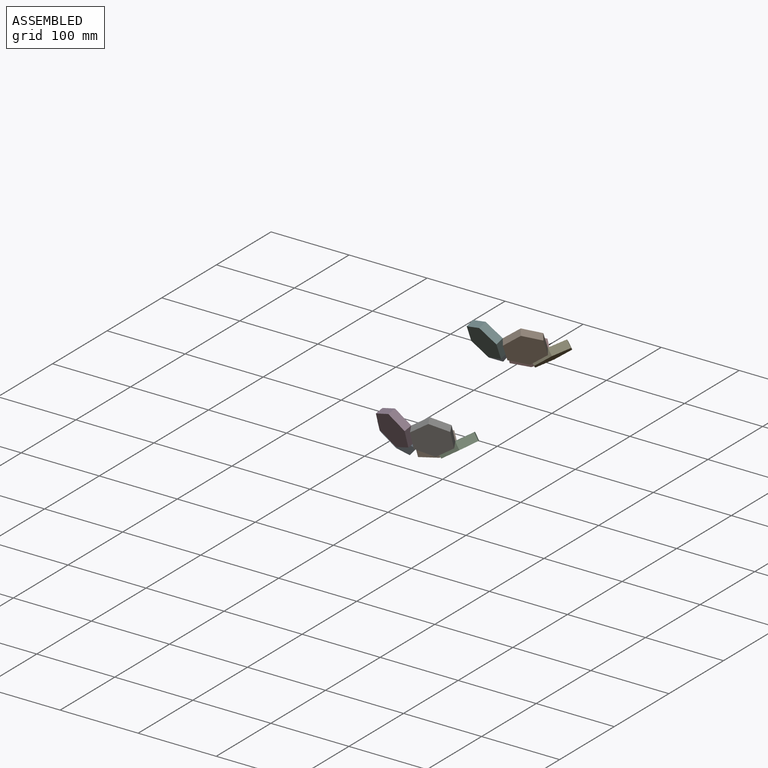
[diagram: assembled view]
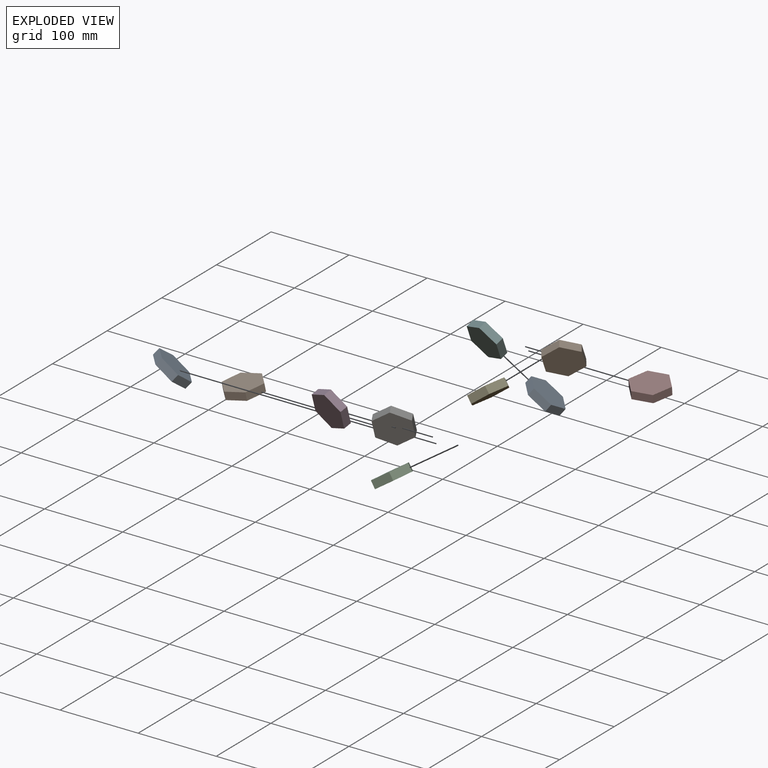
[diagram: exploded view]
GUIDED TOUR — MATED ASSEMBLY (Onshape document 4a54d58a256c18715824fa3d, AutoMate assembly 4a54d58a256c18715824fa3d_50239697ed37a9b57a708772_ed804ed83175c85d9fe1a033_default)

This assembly has 10 components, labeled P0..P9 below (a component is one placed occurrence of a part; the same part can appear more than once), held together by 14 mates. A mate is a constraint between two components; its type names the relative motion it leaves free:
  CYLINDRICAL — leaves both rotation about and translation along the listed axis free,
  REVOLUTE — leaves rotation about the listed axis free (a hinge).
Axis/direction vectors are unit vectors and 'through' points are millimeter coordinates, both in the assembly's world frame.

MATES
  1. REVOLUTE "Revolute 2": P0 <-> P5, axis (-0.797, -0.119, 0.593) through (-139.00, -50.22, 98.42) mm
  2. REVOLUTE "Revolute 3": P6 <-> P3, axis (-0.070, 0.374, -0.925) through (-273.56, 8.32, -65.49) mm
  3. REVOLUTE "Revolute 1": P7 <-> P0, axis (-0.659, 0.745, 0.107) through (-133.83, -17.85, 80.20) mm
  4. CYLINDRICAL "Cylindrical 5": P7 <-> P4, axis (-0.322, -0.941, -0.107) through (-97.06, -10.50, 80.21) mm
  5. REVOLUTE "Revolute 3": P1 <-> P5, axis (-0.095, 0.470, -0.878) through (-105.55, -63.39, 109.11) mm
  6. REVOLUTE "Revolute 4": P4 <-> P1, axis (-0.783, -0.197, -0.590) through (-79.76, -38.40, 98.32) mm
  7. REVOLUTE "Revolute 1": P9 <-> P8, axis (-0.654, 0.756, -0.005) through (-300.71, 50.69, -100.34) mm
  8. REVOLUTE "Revolute 2": P8 <-> P3, axis (-0.809, -0.035, 0.587) through (-306.49, 21.02, -78.15) mm
  9. REVOLUTE "Revolute 5": P9 <-> P2, axis (-0.317, -0.936, -0.152) through (-264.29, 57.44, -94.48) mm
  10. REVOLUTE "Revolute 5": P7 <-> P4, axis (-0.322, -0.941, -0.107) through (-97.06, -10.50, 80.21) mm
  11. REVOLUTE "Revolute 6": P9 <-> P8, axis (-0.654, 0.756, -0.005) through (-300.71, 50.69, -100.34) mm
  12. REVOLUTE "Revolute 6": P7 <-> P0, axis (-0.659, 0.745, 0.107) through (-133.83, -17.85, 80.20) mm
  13. REVOLUTE "Revolute 4": P2 <-> P6, axis (-0.820, -0.168, -0.547) through (-245.41, 28.63, -79.67) mm
  14. CYLINDRICAL "Cylindrical 5": P9 <-> P2, axis (-0.317, -0.936, -0.152) through (-264.29, 57.44, -94.48) mm

ASSEMBLY ORDER
  1. P5 — the base component [order verified]
  2. P0 [order verified]
  3. P1 [order verified]
  4. P4 [order verified]
  5. P7 [order verified]
  6. P6 [order verified]
  7. P2 [order verified]
  8. P3 [order verified]
  9. P8 [order verified]
  10. P9 [order verified]
Order-tag legend:
  [order verified] — this step's position reverses a verified removal order: the component was checked to insert without passing through the ones already placed.

Of the 10 components, 10 carry the full construction recipe — the FeatureScript program that regenerates the part's solid from scratch; the rest are supplied as boundary geometry only.
Each toured component is shown spotlighted twice — in the assembled view, then in the exploded view, where a leader line traces a displaced component back to its assembled socket (saturated green if recipe-attached, orange if geometry-only; every other component desaturated gray) — followed by its recipe or geometry summary and the mates that hold it.
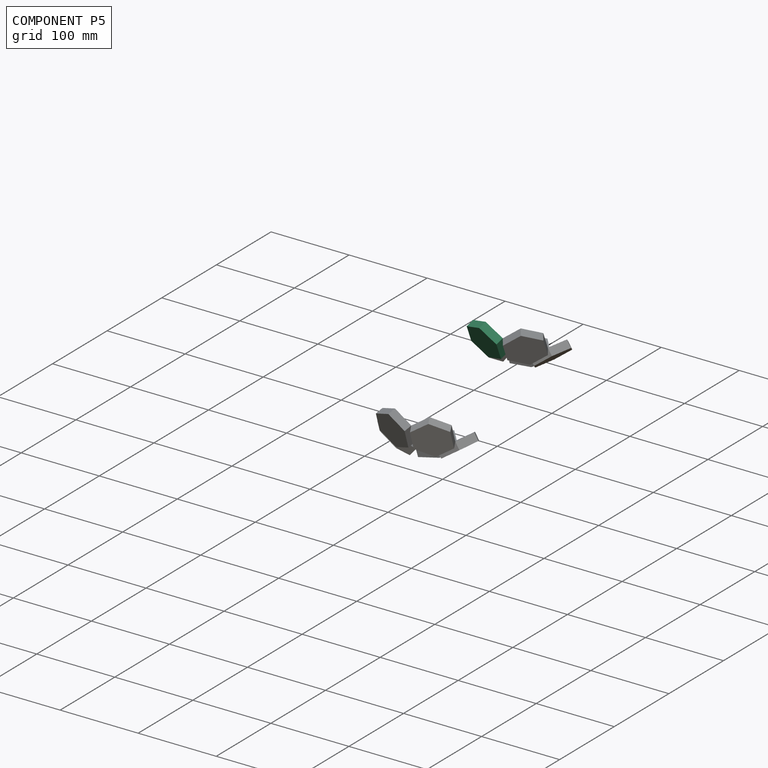
[diagram: component P5 — assembled]
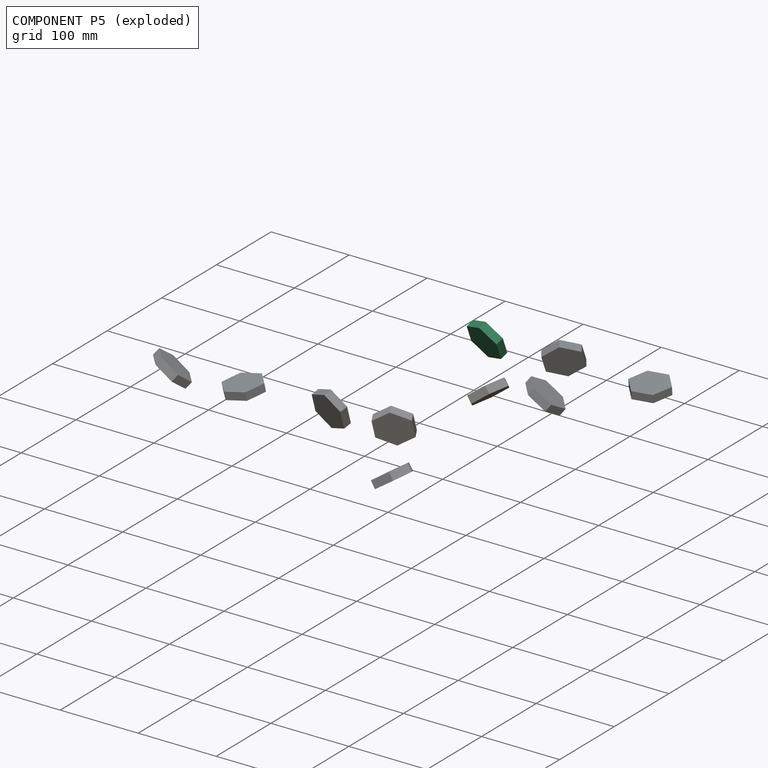
[diagram: component P5 — exploded]
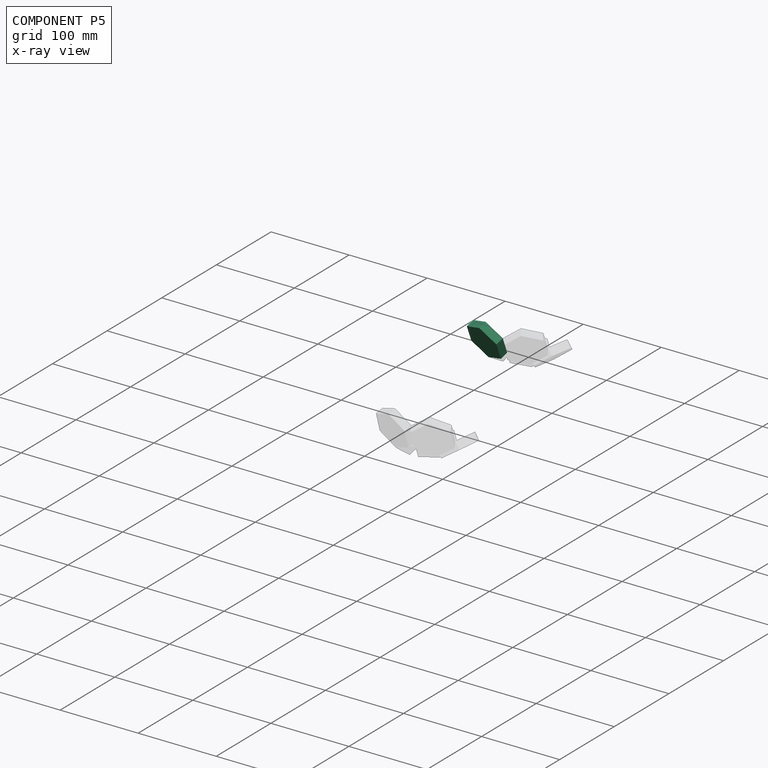
[diagram: component P5 — x-ray view]
COMPONENT P5 — same part as P0 (CADFS 00908609); its construction recipe is shown at P0.
Held by: REVOLUTE mate "Revolute 2" to P0; REVOLUTE mate "Revolute 3" to P1.
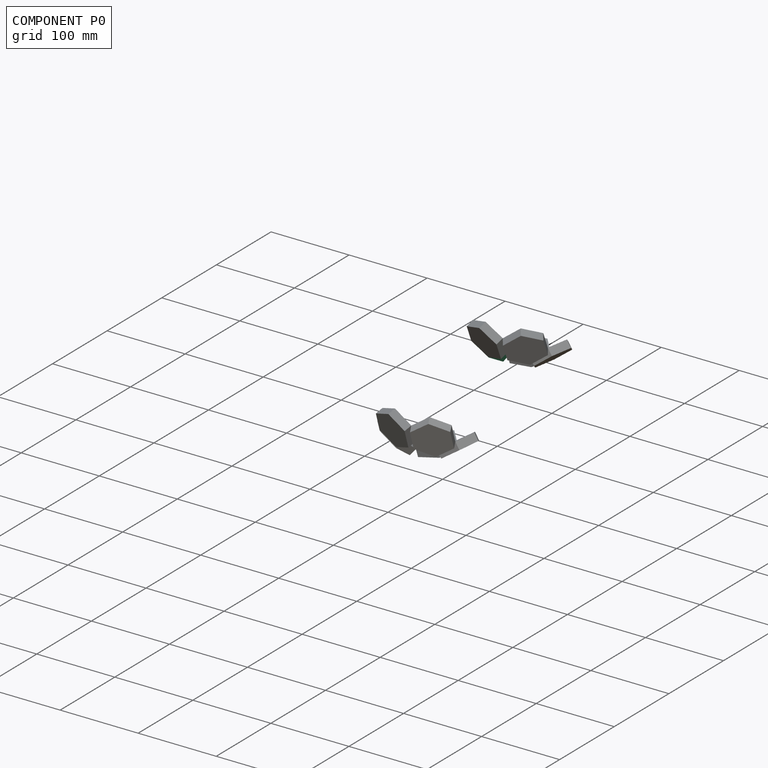
[diagram: component P0 — assembled]
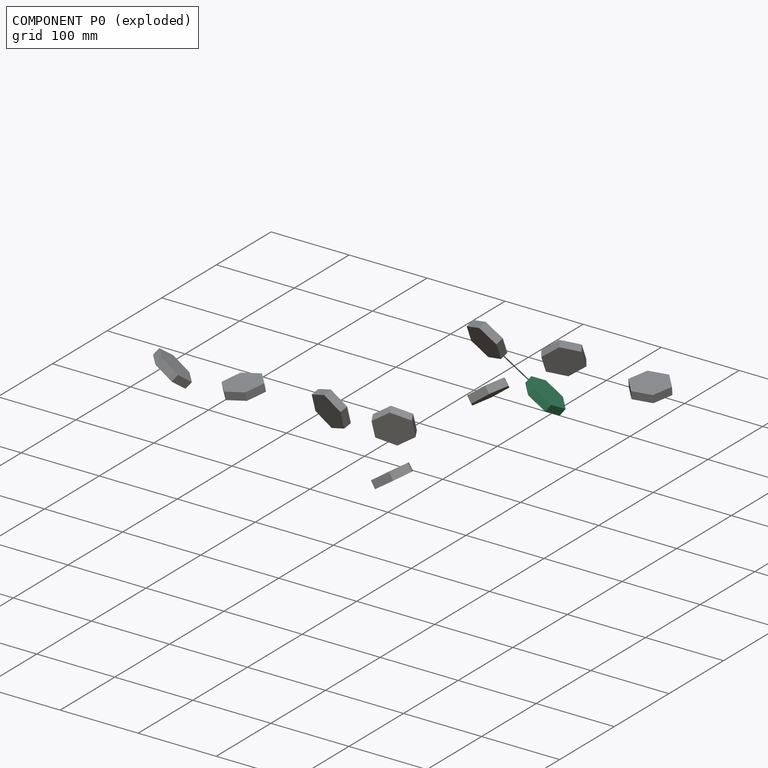
[diagram: component P0 — exploded]
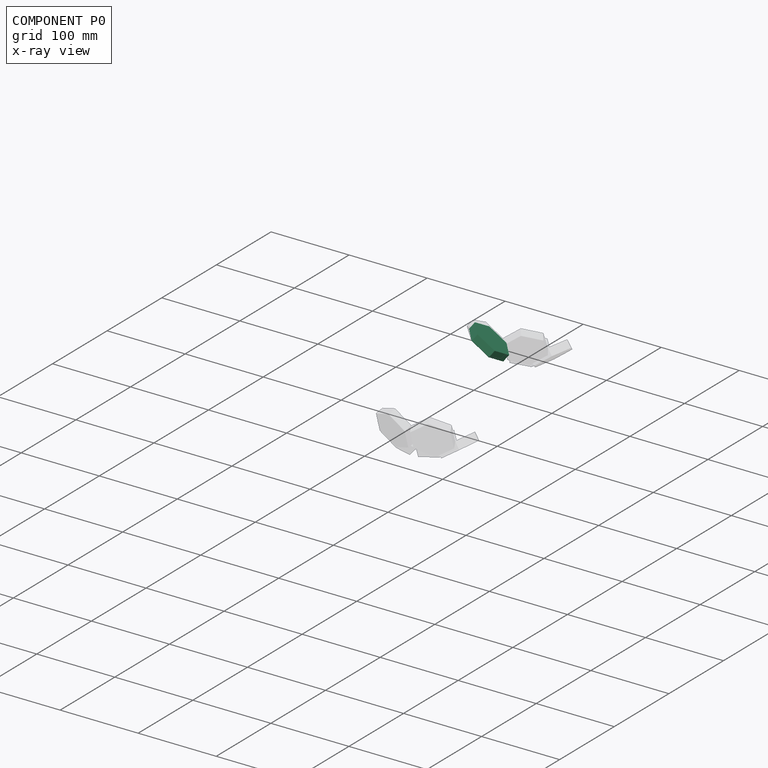
[diagram: component P0 — x-ray view]
COMPONENT P0 — recipe-attached (CADFS 00908609, mesh-verified: the recipe's output STEP matches this component's geometry to below the mesh-comparison resolution (tessellation chordal tolerance ~0.101 mm)).
Held by: REVOLUTE mate "Revolute 2" to P5; REVOLUTE mate "Revolute 1" to P7; REVOLUTE mate "Revolute 6" to P7.
Construction recipe (FeatureScript — the CAD program that rebuilds this solid; sketch coordinates are in the units given by the * unit suffixes, e.g. mm):

FeatureScript 1511;
import(path : "onshape/std/geometry.fs", version : "1511.0");
import(path : "onshape/std/common.fs", version : "1511.0");
const mm = millimeter;
const VERTEX = EntityType.VERTEX;
const EDGE = EntityType.EDGE;
const FACE = EntityType.FACE;
const BODY = EntityType.BODY;
function v(x, y){return vector(x, y);}
function OD(order){return orderDisambiguation(order);}
function OSD(set){return originalSetDisambiguation(set);}
function TD(topology){return topologyDisambiguation(topology);}
function TDD(query){return trueDependencyDisambiguation(query);}
function sQuery(a, b, c) {return sketchEntityQuery(a, b, c);}

annotation { "Feature Type Name" : "Feature", "Feature Type Description" : "" }
export const myFeature = defineFeature(function(context is Context, id is Id, definition is map)
    precondition{}
    {
        {
            var Q0;
            Q0=qCreatedBy(makeId("Top.planeOp"),FACE);
            var sketch = newSketch(context, id + "F0", { "sketchPlane" : qUnion([Q0])});
            skCircle(sketch, "E0.cCircle", {"center": v(0, 0) * mm, "radius": 21.65 * mm, "construction": true});
            skLineSegment(sketch, "E0.0", {"start": v(12.18, 21.83) * mm, "end": v(25, 0.37) * mm});
            skLineSegment(sketch, "E0.1", {"start": v(25, 0.37) * mm, "end": v(12.82, -21.46) * mm});
            skLineSegment(sketch, "E0.2", {"start": v(12.82, -21.46) * mm, "end": v(-12.18, -21.83) * mm});
            skLineSegment(sketch, "E0.3", {"start": v(-12.18, -21.83) * mm, "end": v(-25, -0.37) * mm});
            skLineSegment(sketch, "E0.4", {"start": v(-25, -0.37) * mm, "end": v(-12.82, 21.46) * mm});
            skLineSegment(sketch, "E0.5", {"start": v(-12.82, 21.46) * mm, "end": v(12.18, 21.83) * mm});
            skPoint(sketch, "E0.0.midPoint", {"position": v(18.59, 11.1) * mm});
            skSolve(sketch);
        }
        {
            var Q0;
            Q0=makeQuery(id+"F0.imprint","IMPRINT",FACE,{"disambiguationData":[TD([[makeQuery(id+"F0.imprint","IMPRINT",EDGE,{"derivedFrom":sQuery(id+"F0.wireOp",EDGE,"E0.0")}),-1.0]])]});
            var Q1;
            Q1=makeQuery(id+"F0.imprint","IMPRINT",FACE,{"disambiguationData":[TD([[makeQuery(id+"F0.imprint","IMPRINT",EDGE,{"derivedFrom":sQuery(id+"F0.wireOp",EDGE,"E0.0")}),-1.0]])]});
            extrude(context, id + "F1", {"entities" : qUnion([Q0, Q1]), "oppositeDirection" : true, "depth" : 10 * mm, "offsetDistance" : 25 * mm});
        }
    });
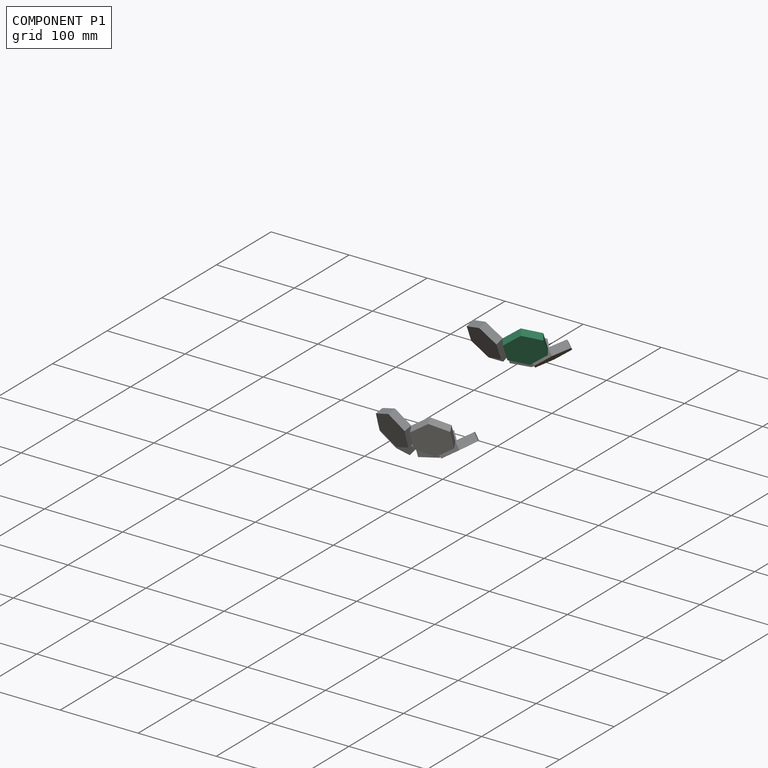
[diagram: component P1 — assembled]
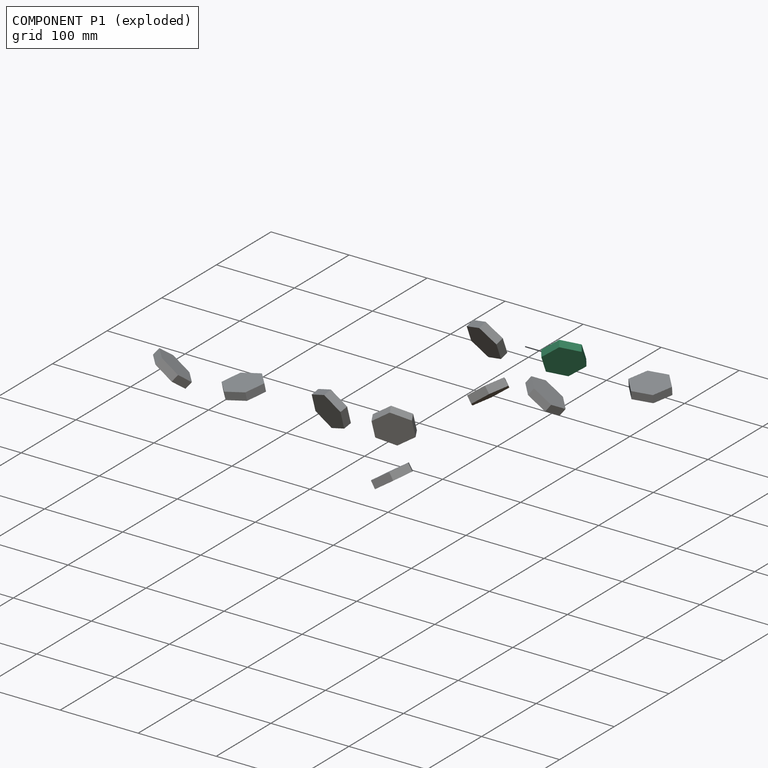
[diagram: component P1 — exploded]
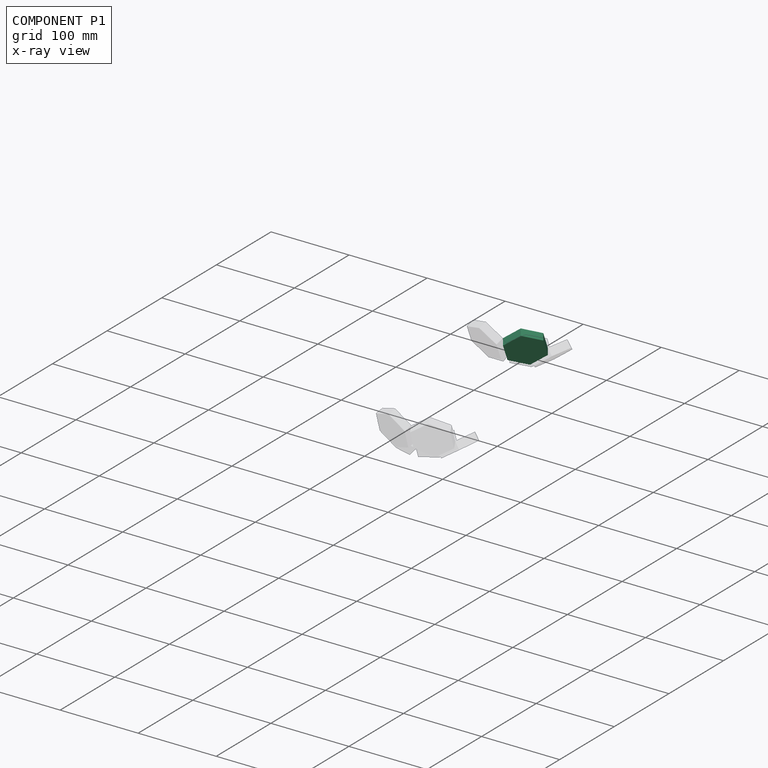
[diagram: component P1 — x-ray view]
COMPONENT P1 — same part as P0 (CADFS 00908609); its construction recipe is shown at P0.
Held by: REVOLUTE mate "Revolute 3" to P5; REVOLUTE mate "Revolute 4" to P4.
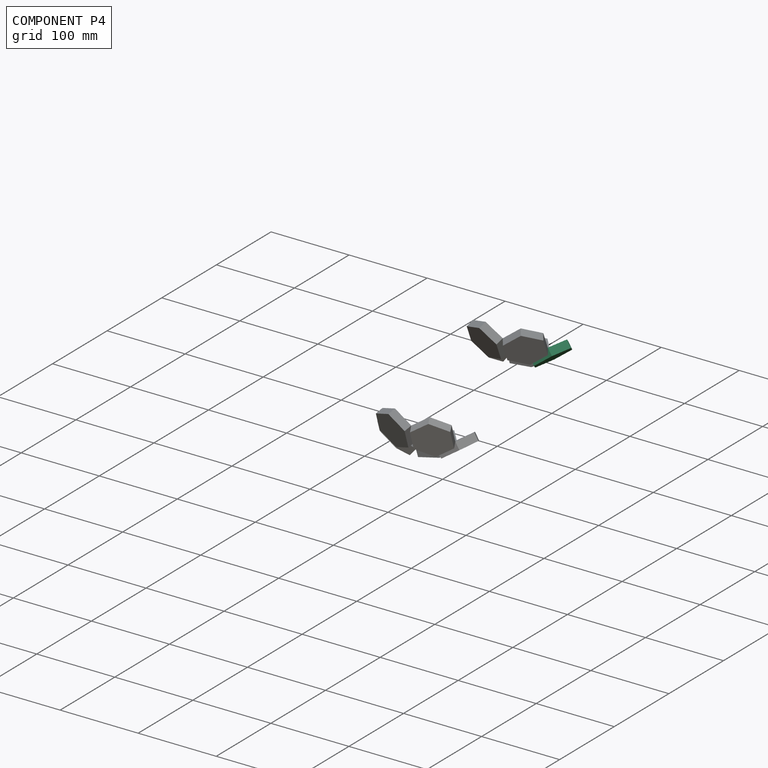
[diagram: component P4 — assembled]
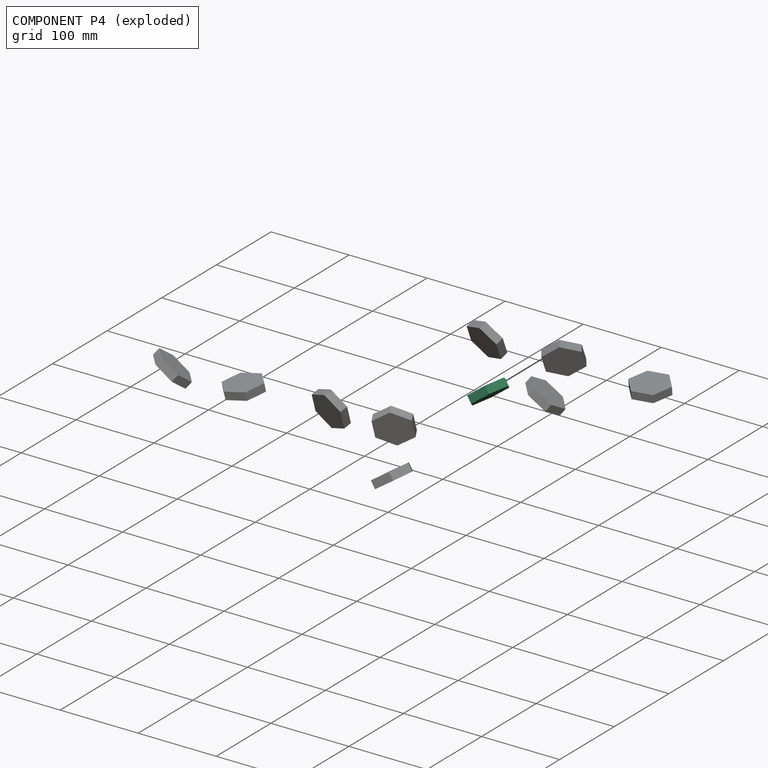
[diagram: component P4 — exploded]
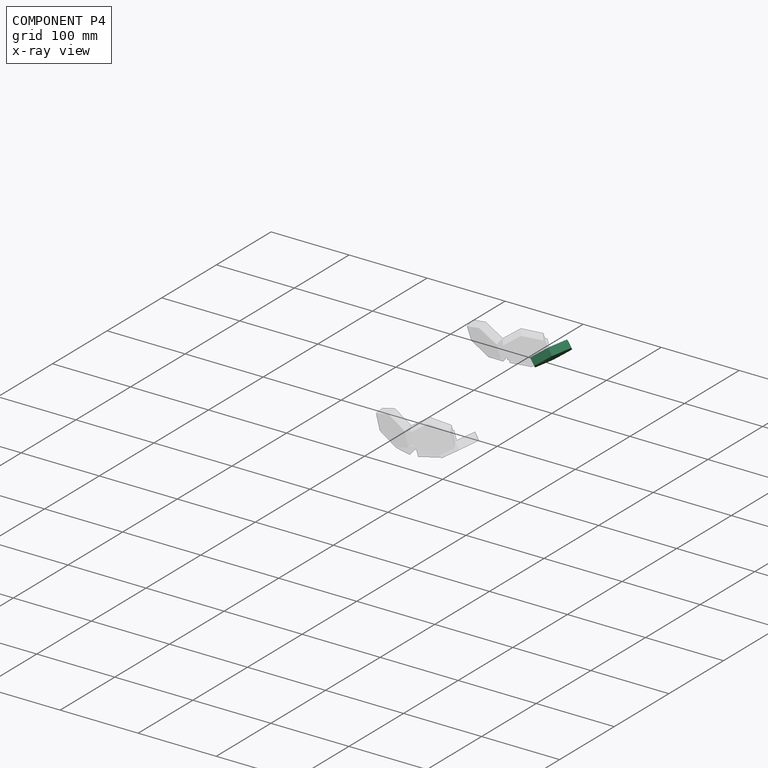
[diagram: component P4 — x-ray view]
COMPONENT P4 — same part as P0 (CADFS 00908609); its construction recipe is shown at P0.
Held by: CYLINDRICAL mate "Cylindrical 5" to P7; REVOLUTE mate "Revolute 4" to P1; REVOLUTE mate "Revolute 5" to P7.
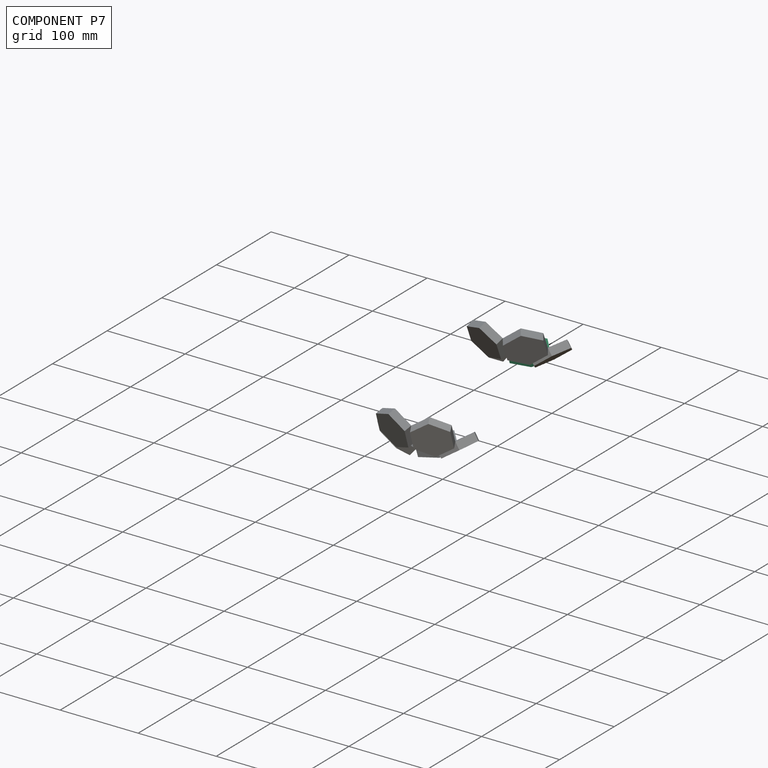
[diagram: component P7 — assembled]
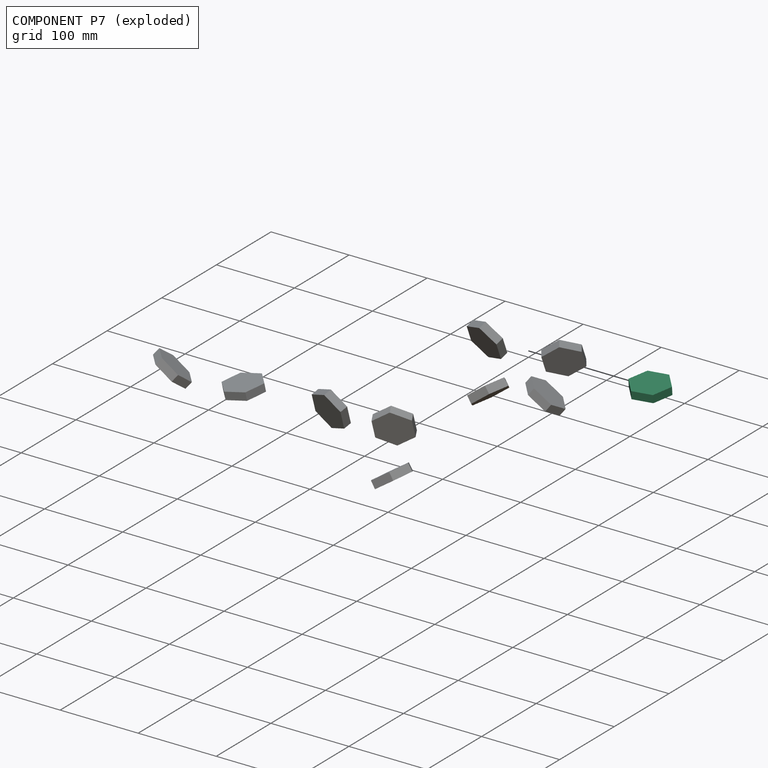
[diagram: component P7 — exploded]
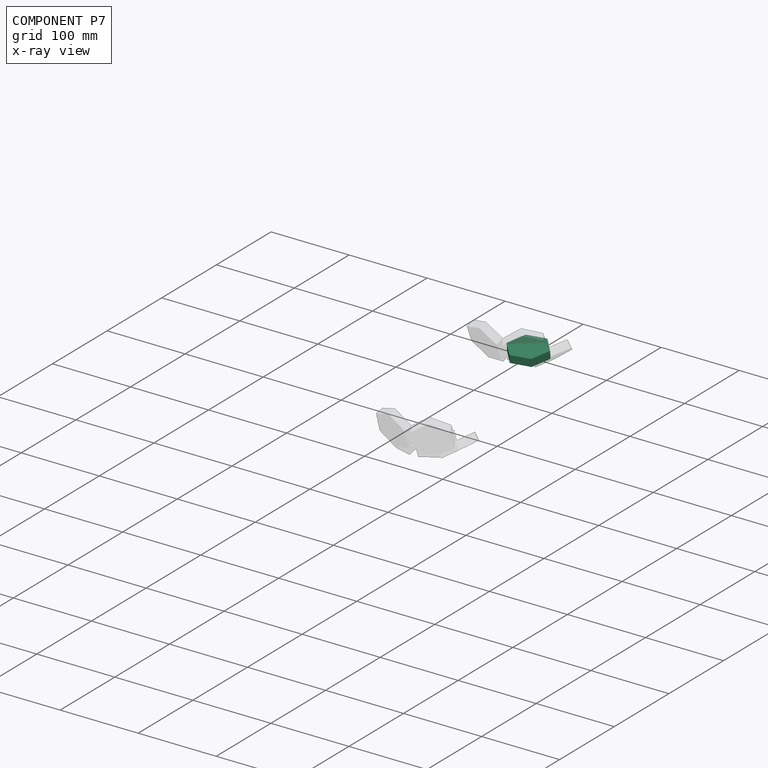
[diagram: component P7 — x-ray view]
COMPONENT P7 — same part as P0 (CADFS 00908609); its construction recipe is shown at P0.
Held by: REVOLUTE mate "Revolute 1" to P0; CYLINDRICAL mate "Cylindrical 5" to P4; REVOLUTE mate "Revolute 5" to P4; REVOLUTE mate "Revolute 6" to P0.
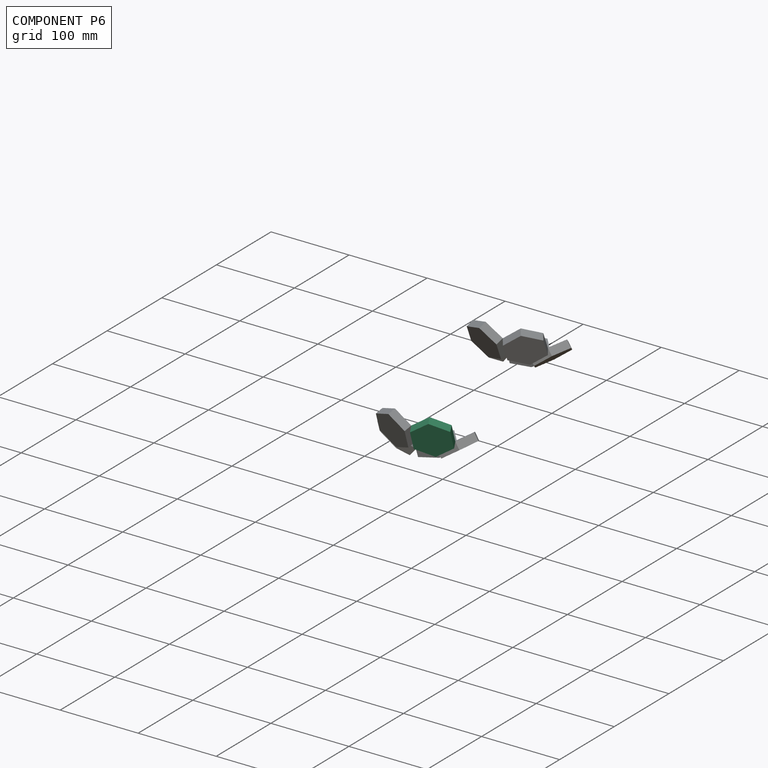
[diagram: component P6 — assembled]
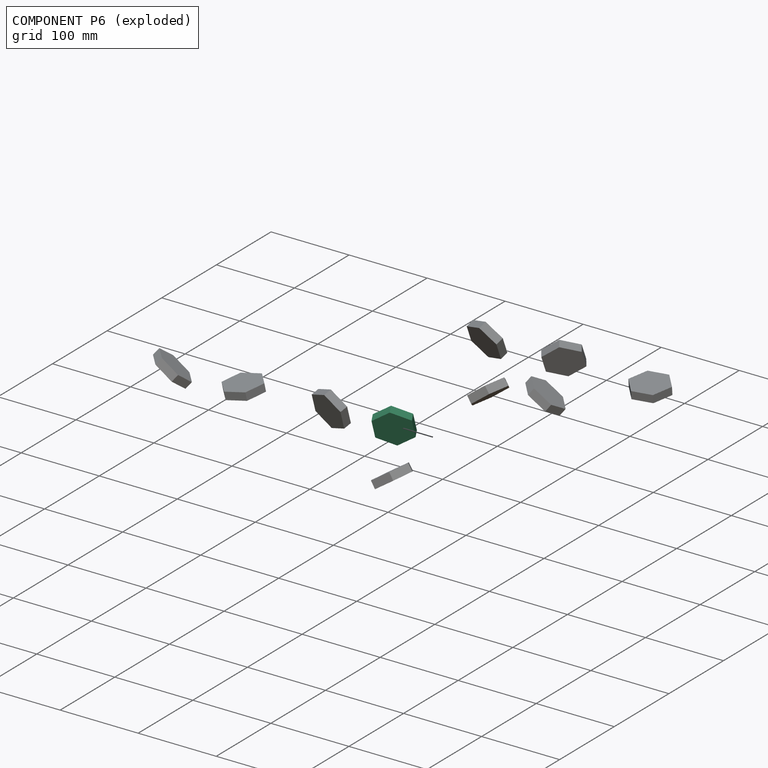
[diagram: component P6 — exploded]
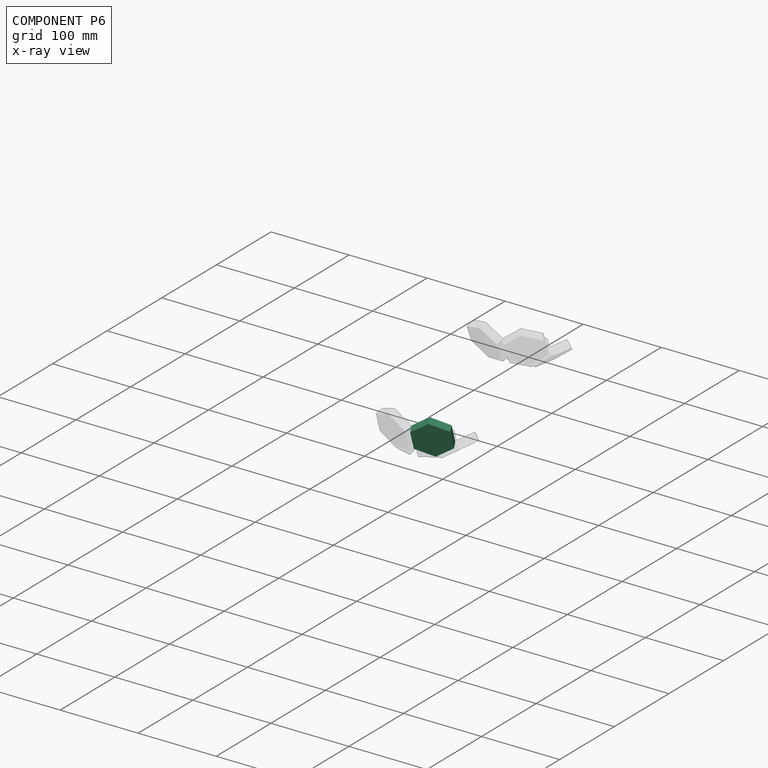
[diagram: component P6 — x-ray view]
COMPONENT P6 — same part as P0 (CADFS 00908609); its construction recipe is shown at P0.
Held by: REVOLUTE mate "Revolute 3" to P3; REVOLUTE mate "Revolute 4" to P2.
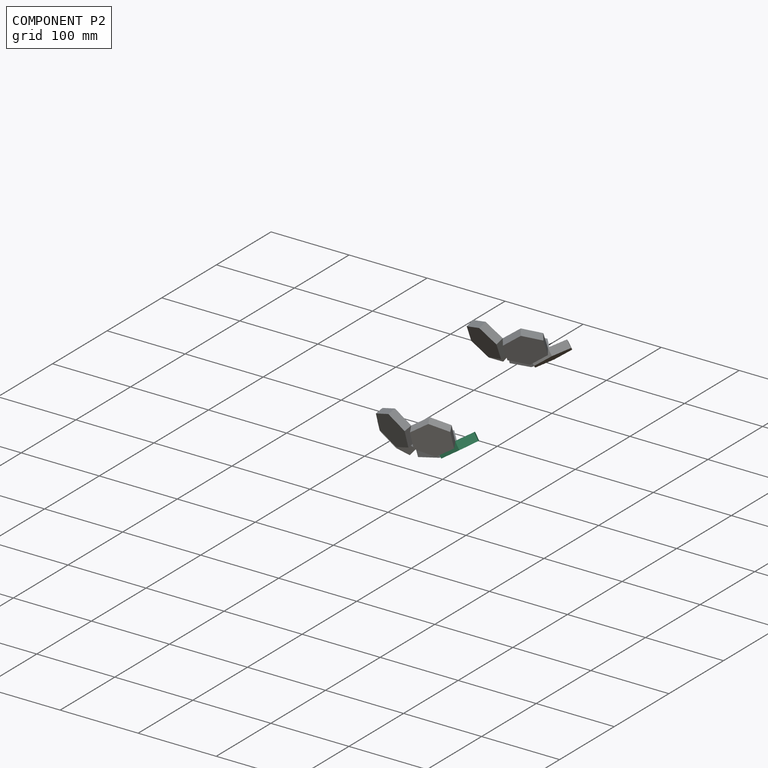
[diagram: component P2 — assembled]
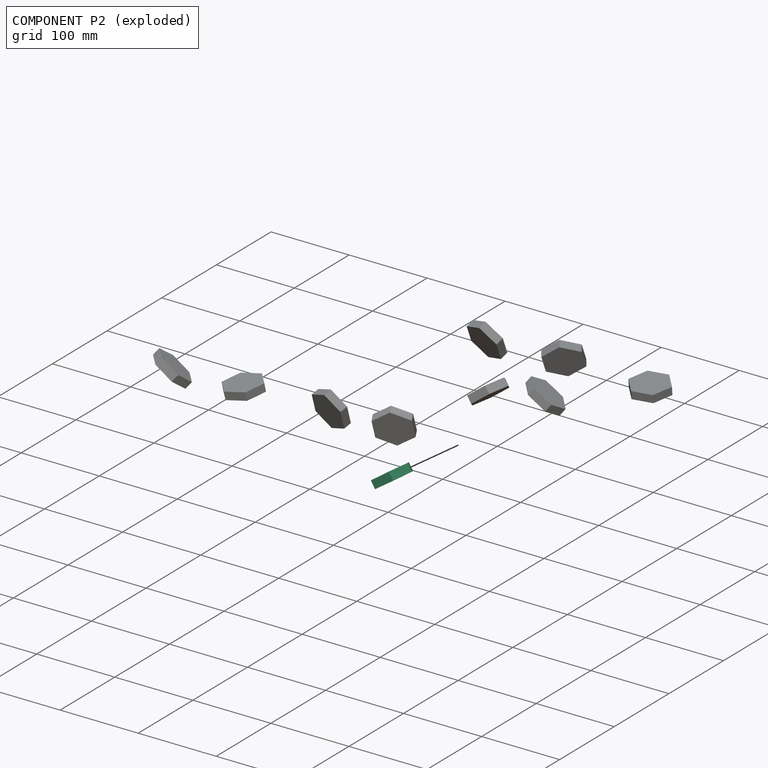
[diagram: component P2 — exploded]
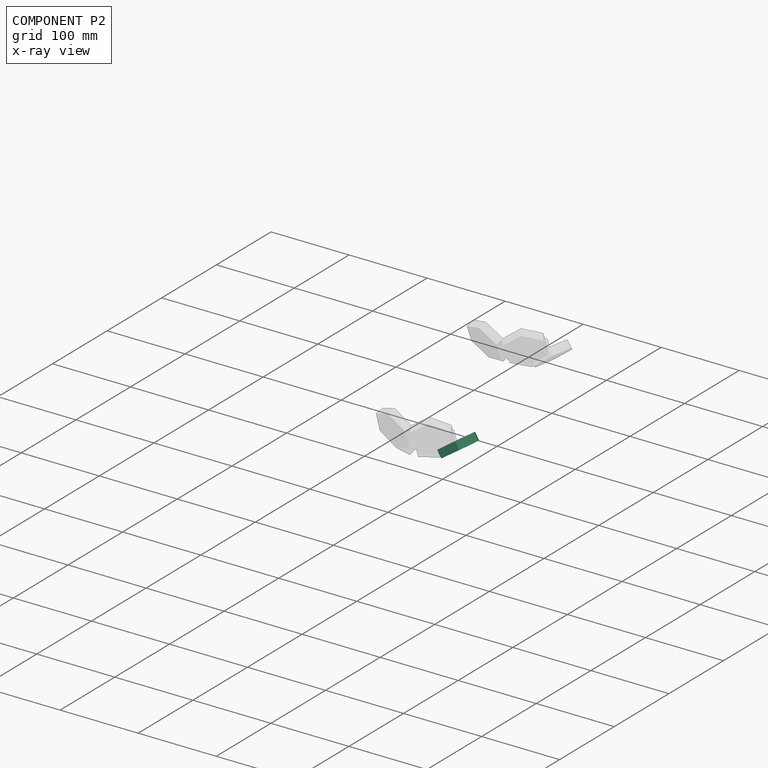
[diagram: component P2 — x-ray view]
COMPONENT P2 — same part as P0 (CADFS 00908609); its construction recipe is shown at P0.
Held by: REVOLUTE mate "Revolute 5" to P9; REVOLUTE mate "Revolute 4" to P6; CYLINDRICAL mate "Cylindrical 5" to P9.
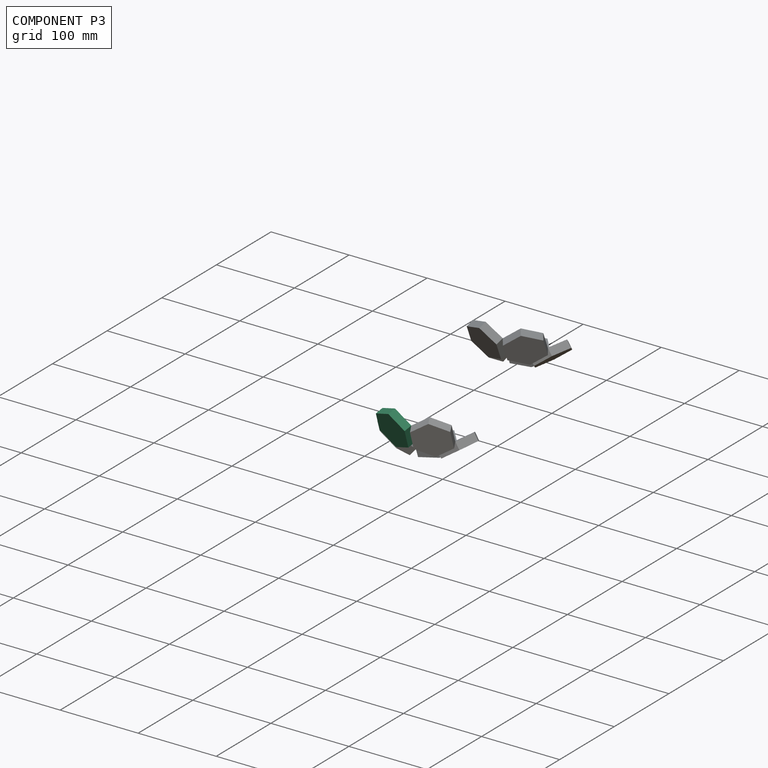
[diagram: component P3 — assembled]
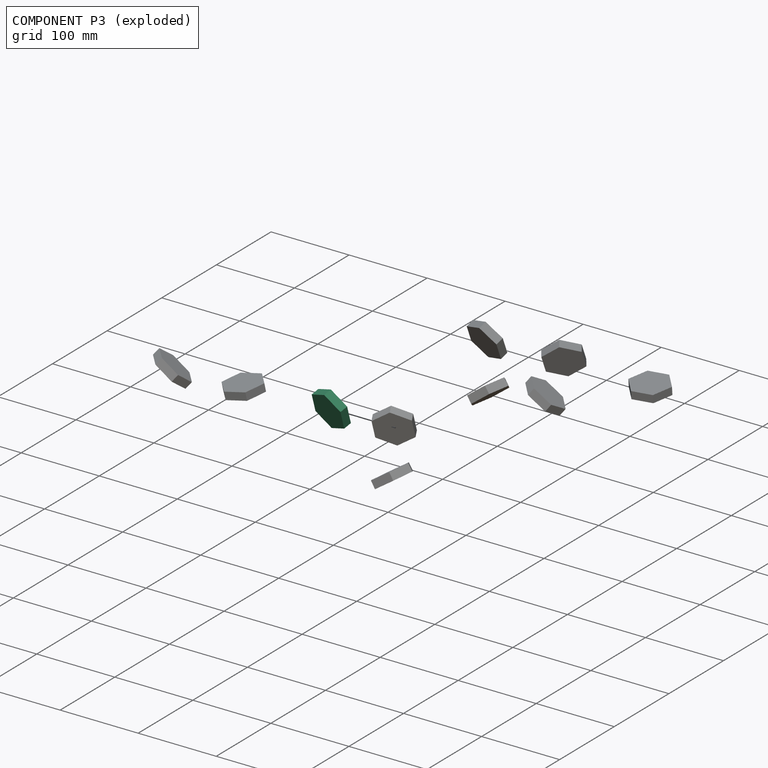
[diagram: component P3 — exploded]
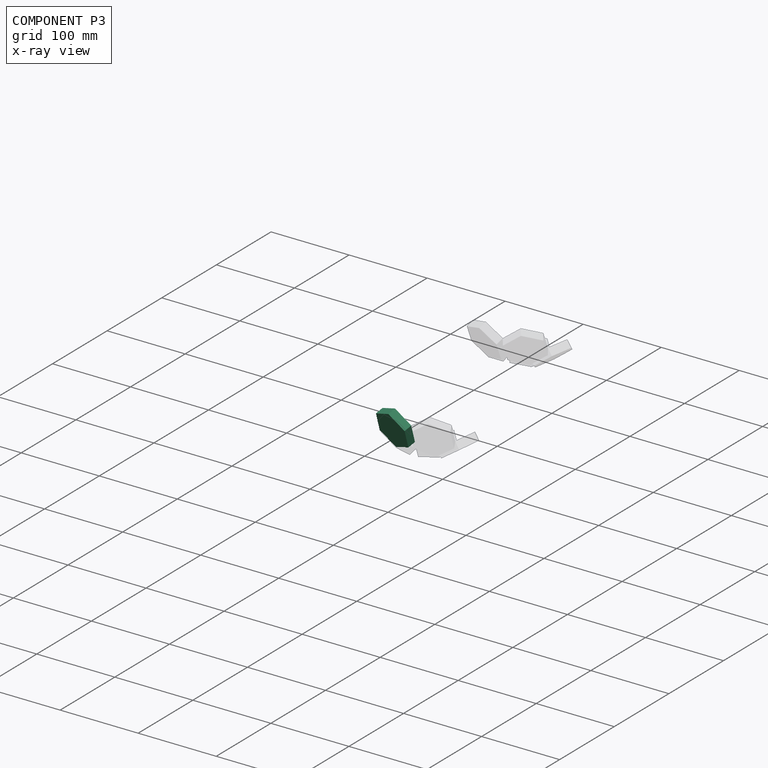
[diagram: component P3 — x-ray view]
COMPONENT P3 — same part as P0 (CADFS 00908609); its construction recipe is shown at P0.
Held by: REVOLUTE mate "Revolute 3" to P6; REVOLUTE mate "Revolute 2" to P8.
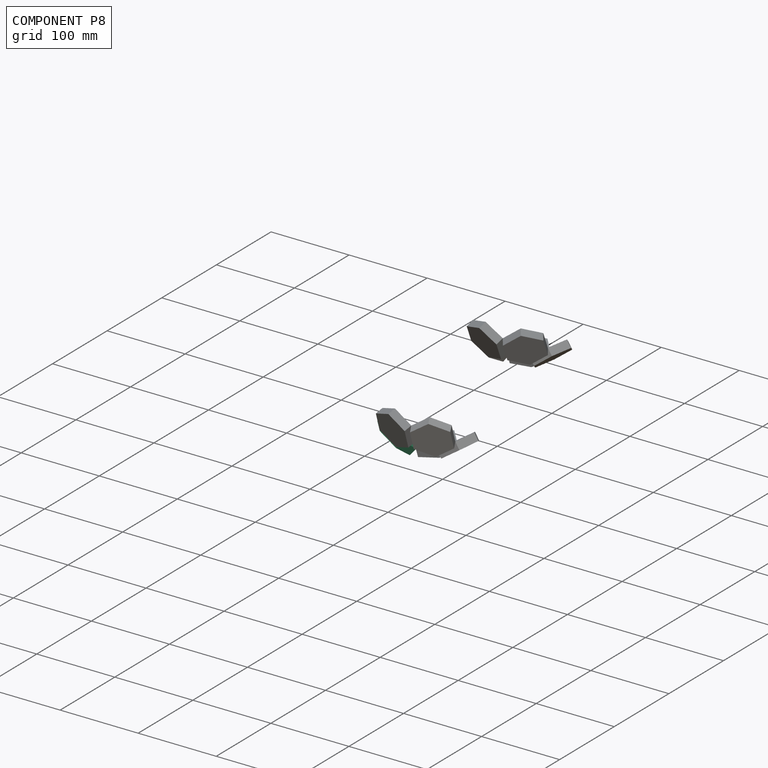
[diagram: component P8 — assembled]
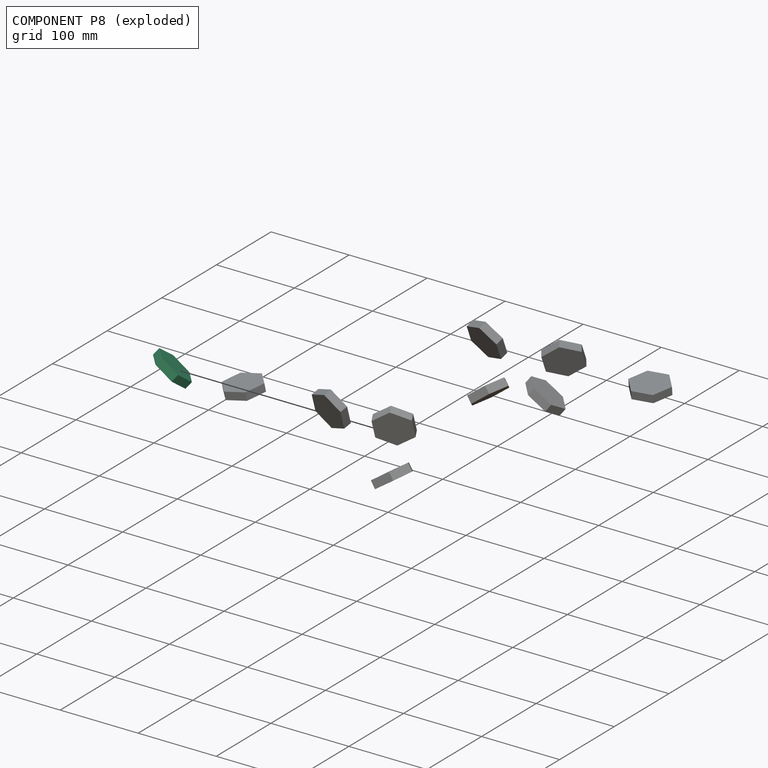
[diagram: component P8 — exploded]
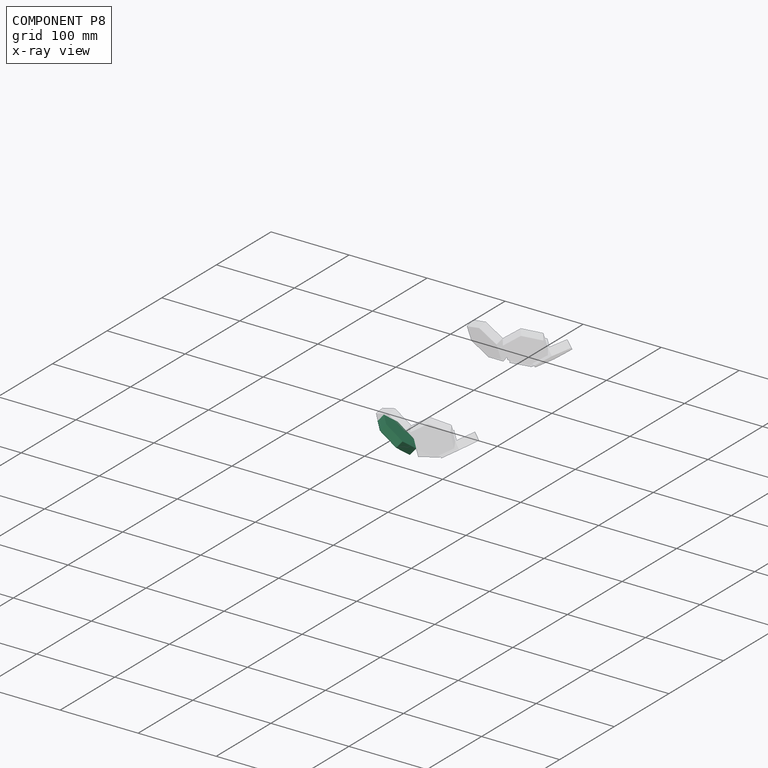
[diagram: component P8 — x-ray view]
COMPONENT P8 — same part as P0 (CADFS 00908609); its construction recipe is shown at P0.
Held by: REVOLUTE mate "Revolute 1" to P9; REVOLUTE mate "Revolute 2" to P3; REVOLUTE mate "Revolute 6" to P9.
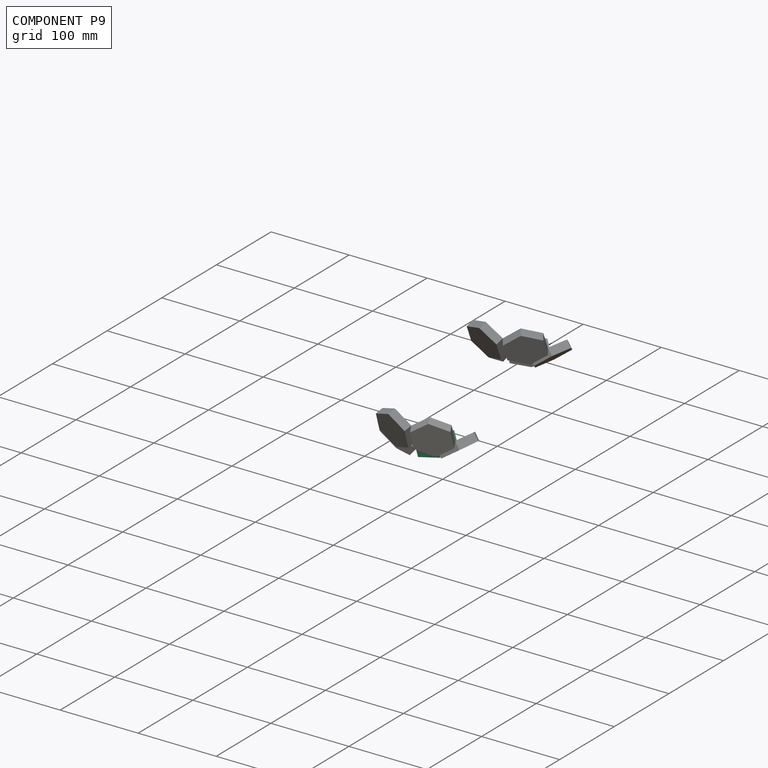
[diagram: component P9 — assembled]
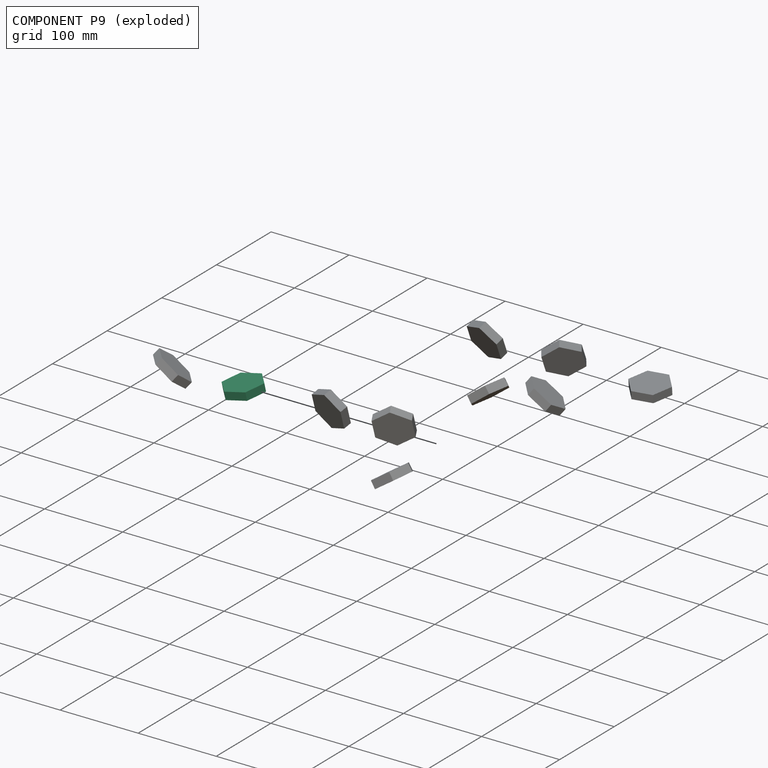
[diagram: component P9 — exploded]
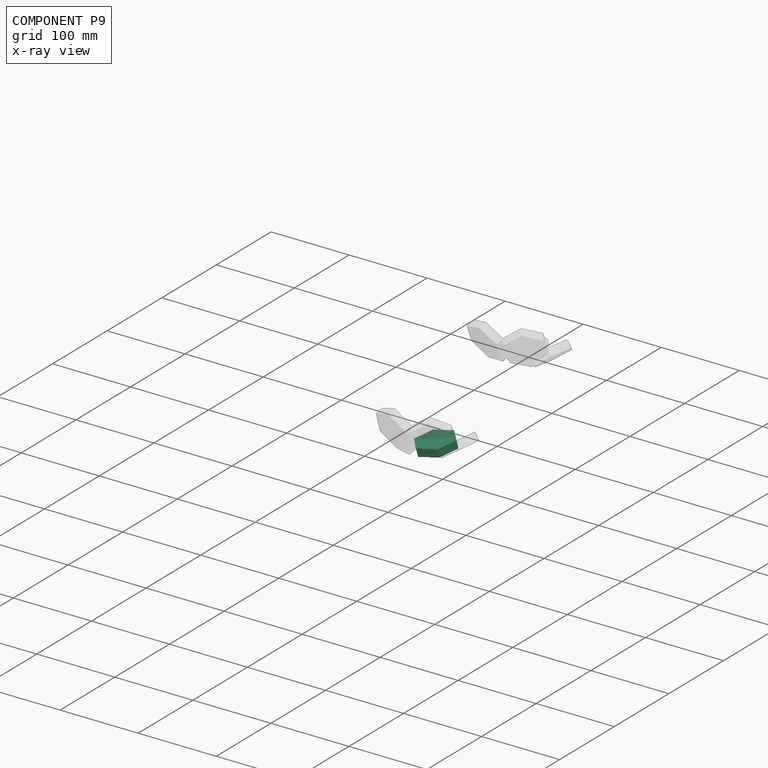
[diagram: component P9 — x-ray view]
COMPONENT P9 — same part as P0 (CADFS 00908609); its construction recipe is shown at P0.
Held by: REVOLUTE mate "Revolute 1" to P8; REVOLUTE mate "Revolute 5" to P2; REVOLUTE mate "Revolute 6" to P8; CYLINDRICAL mate "Cylindrical 5" to P2.
PROVENANCE & LICENSES
Assembly (occurrences, transforms, mates, per-part STEP geometry): AutoMate dataset, Zenodo record 7776208, CC0.
Construction recipes: CADFS (HuggingFace VladPyatov/CADFS, CC-BY-4.0, layered over the ABC dataset), FeatureScript reconstruction programs keyed by ABC model id.
Join: ABC meta listings map ABC model id -> Onshape documentId; within a shared document, parts are matched by geometric signature (bounding-box dims + volume at 0.1% relative tolerance, exact B-rep face/solid counts).
Verification: 10 of this assembly's 10 components carry a recipe attachment, and every attachment is mesh-verified: the CADFS STEP and the AutoMate member STEP were compared as meshes in their shared local frame (symmetric sampled-point-to-mesh distance); worst across the 10 attachments: below the mesh-comparison resolution (tessellation chordal tolerance ~0.101 mm) on a 67 mm part.
Renders: orthographic iso camera (az 35 / el 25); the floor grid conveys scale (grid pitch printed in each image; no ruler). In the exploded view each component is displaced by its stored offset vector: the offsets alone carry the explosion direction (mate normal/axis signs are not orientation cues and do not encode it), and separation distances are assigned per mate-chain, not proportionally to assembly-order depth.
